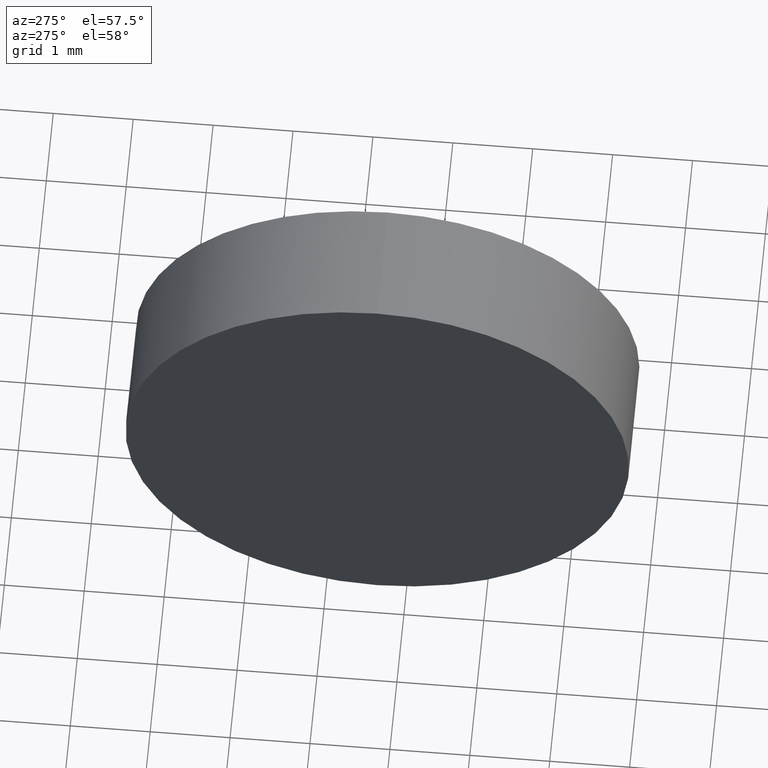
[diagram: clean part render]
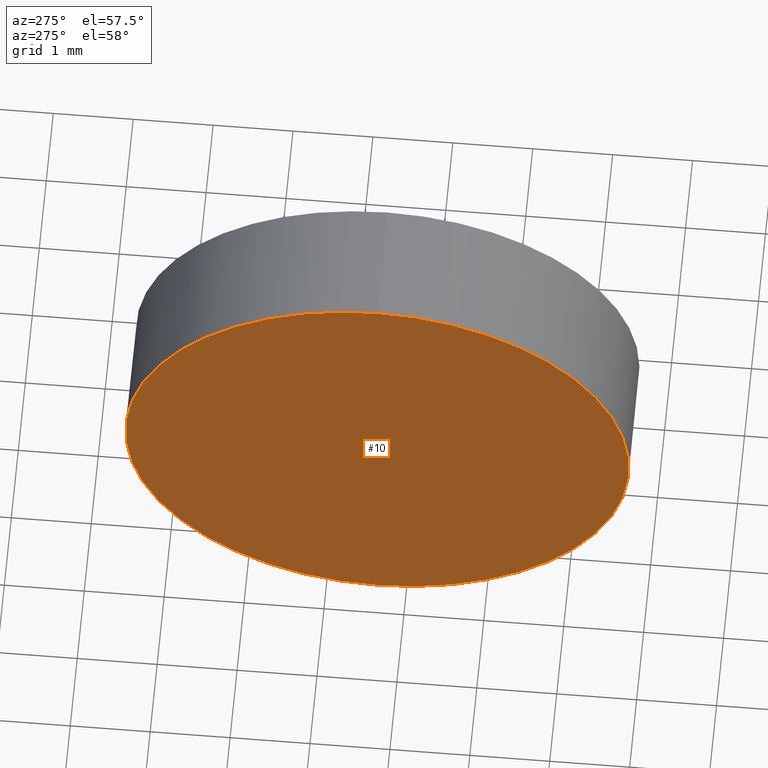
[diagram: same view with one face highlighted and labeled with its STEP entity id]
A machine part, auxiliary view. The second image highlights one B-rep face of the part: STEP entity #10.
In plain terms, the highlighted planar face has unit normal (1, 0, 0).
Its self-contained STEP definition (entity closure, byte-faithful):
#3 = VERTEX_POINT ( 'NONE', #67 ) ;
#4 = ORIENTED_EDGE ( 'NONE', *, *, #133, .T. ) ;
#6 = VERTEX_POINT ( 'NONE', #104 ) ;
#10 = ADVANCED_FACE ( 'NONE', ( #41 ), #69, .F. ) ;
#17 = DIRECTION ( 'NONE',  ( -1.000000000000000000, -0.0000000000000000000, -0.0000000000000000000 ) ) ;
#35 = EDGE_CURVE ( 'NONE', #3, #6, #75, .T. ) ;
#41 = FACE_OUTER_BOUND ( 'NONE', #60, .T. ) ;
#55 = ORIENTED_EDGE ( 'NONE', *, *, #35, .T. ) ;
#60 = EDGE_LOOP ( 'NONE', ( #55, #4 ) ) ;
#67 = CARTESIAN_POINT ( 'NONE',  ( 554.3187275599364100, 146.3616492016622000, 3.150000000000013700 ) ) ;
#69 = PLANE ( 'NONE',  #138 ) ;
#72 = DIRECTION ( 'NONE',  ( 0.0000000000000000000, 0.0000000000000000000, 1.000000000000000000 ) ) ;
#73 = AXIS2_PLACEMENT_3D ( 'NONE', #98, #17, #72 ) ;
#75 = CIRCLE ( 'NONE', #73, 3.150000000000013700 ) ;
#98 = CARTESIAN_POINT ( 'NONE',  ( 554.3187275599364100, 146.3616492016622000, 0.0000000000000000000 ) ) ;
#104 = CARTESIAN_POINT ( 'NONE',  ( 554.3187275599364100, 146.3616492016622000, -3.150000000000013700 ) ) ;
#120 = CARTESIAN_POINT ( 'NONE',  ( 554.3187275599364100, 146.3616492016622000, 0.0000000000000000000 ) ) ;
#124 = DIRECTION ( 'NONE',  ( -1.000000000000000000, -0.0000000000000000000, -0.0000000000000000000 ) ) ;
#133 = EDGE_CURVE ( 'NONE', #6, #3, #178, .T. ) ;
#138 = AXIS2_PLACEMENT_3D ( 'NONE', #120, #165, #146 ) ;
#146 = DIRECTION ( 'NONE',  ( 0.0000000000000000000, 0.0000000000000000000, -1.000000000000000000 ) ) ;
#165 = DIRECTION ( 'NONE',  ( 1.000000000000000000, 0.0000000000000000000, 0.0000000000000000000 ) ) ;
#169 = CARTESIAN_POINT ( 'NONE',  ( 554.3187275599364100, 146.3616492016622000, 0.0000000000000000000 ) ) ;
#178 = CIRCLE ( 'NONE', #186, 3.150000000000013700 ) ;
#183 = DIRECTION ( 'NONE',  ( 0.0000000000000000000, 0.0000000000000000000, 1.000000000000000000 ) ) ;
#186 = AXIS2_PLACEMENT_3D ( 'NONE', #169, #124, #183 ) ;